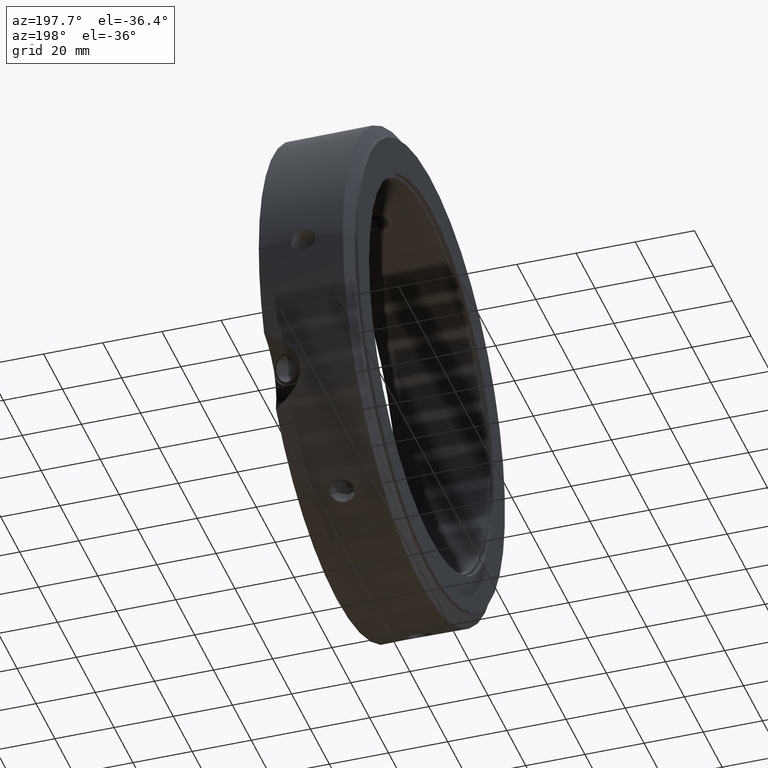
[diagram: clean part render]
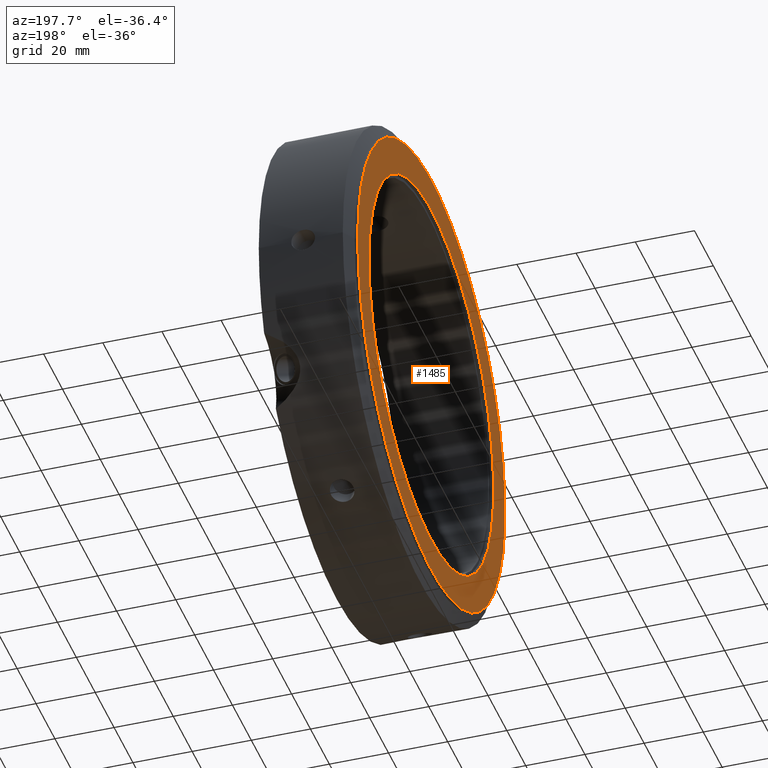
[diagram: same view with one face highlighted and labeled with its STEP entity id]
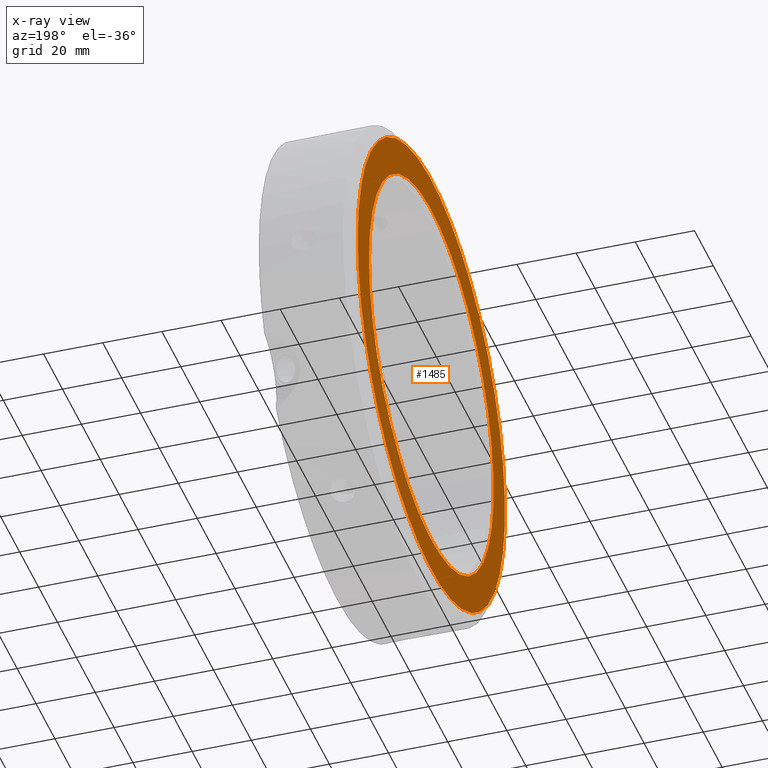
[diagram: x-ray of the same camera — body ghosted, the highlighted face saturated]
A machine part, auxiliary view. The second image highlights one B-rep face of the part: STEP entity #1485.
The next image is the same camera in x-ray: the body ghosted, the highlighted face saturated — about 0% of this face is hidden behind the body in this view.
In plain terms, the highlighted planar face has unit normal (-1, 0, 0).
Its self-contained STEP definition (entity closure, byte-faithful):
#1451=CARTESIAN_POINT('',(-1.942890E-014,66.0,0.0));
#1452=VERTEX_POINT('',#1451);
#1453=CARTESIAN_POINT('',(-1.942890E-014,0.0,0.0));
#1454=DIRECTION('',(1.0,0.0,0.0));
#1455=DIRECTION('',(0.0,1.0,0.0));
#1456=AXIS2_PLACEMENT_3D('',#1453,#1454,#1455);
#1457=CIRCLE('',#1456,66.0);
#1458=EDGE_CURVE('',#1452,#1452,#1457,.T.);
#1466=CARTESIAN_POINT('',(-2.081668E-014,72.000000000000014,0.0));
#1467=DIRECTION('',(-1.0,0.0,0.0));
#1468=DIRECTION('',(0.0,0.0,1.0));
#1469=AXIS2_PLACEMENT_3D('',#1466,#1467,#1468);
#1470=PLANE('',#1469);
#1471=CARTESIAN_POINT('',(-2.220446E-014,78.0,0.0));
#1472=VERTEX_POINT('',#1471);
#1473=CARTESIAN_POINT('',(-2.220446E-014,0.0,0.0));
#1474=DIRECTION('',(1.0,0.0,0.0));
#1475=DIRECTION('',(0.0,1.0,0.0));
#1476=AXIS2_PLACEMENT_3D('',#1473,#1474,#1475);
#1477=CIRCLE('',#1476,78.0);
#1478=EDGE_CURVE('',#1472,#1472,#1477,.T.);
#1479=ORIENTED_EDGE('',*,*,#1478,.F.);
#1480=EDGE_LOOP('',(#1479));
#1481=FACE_OUTER_BOUND('',#1480,.T.);
#1482=ORIENTED_EDGE('',*,*,#1458,.T.);
#1483=EDGE_LOOP('',(#1482));
#1484=FACE_BOUND('',#1483,.T.);
#1485=ADVANCED_FACE('',(#1481,#1484),#1470,.T.);